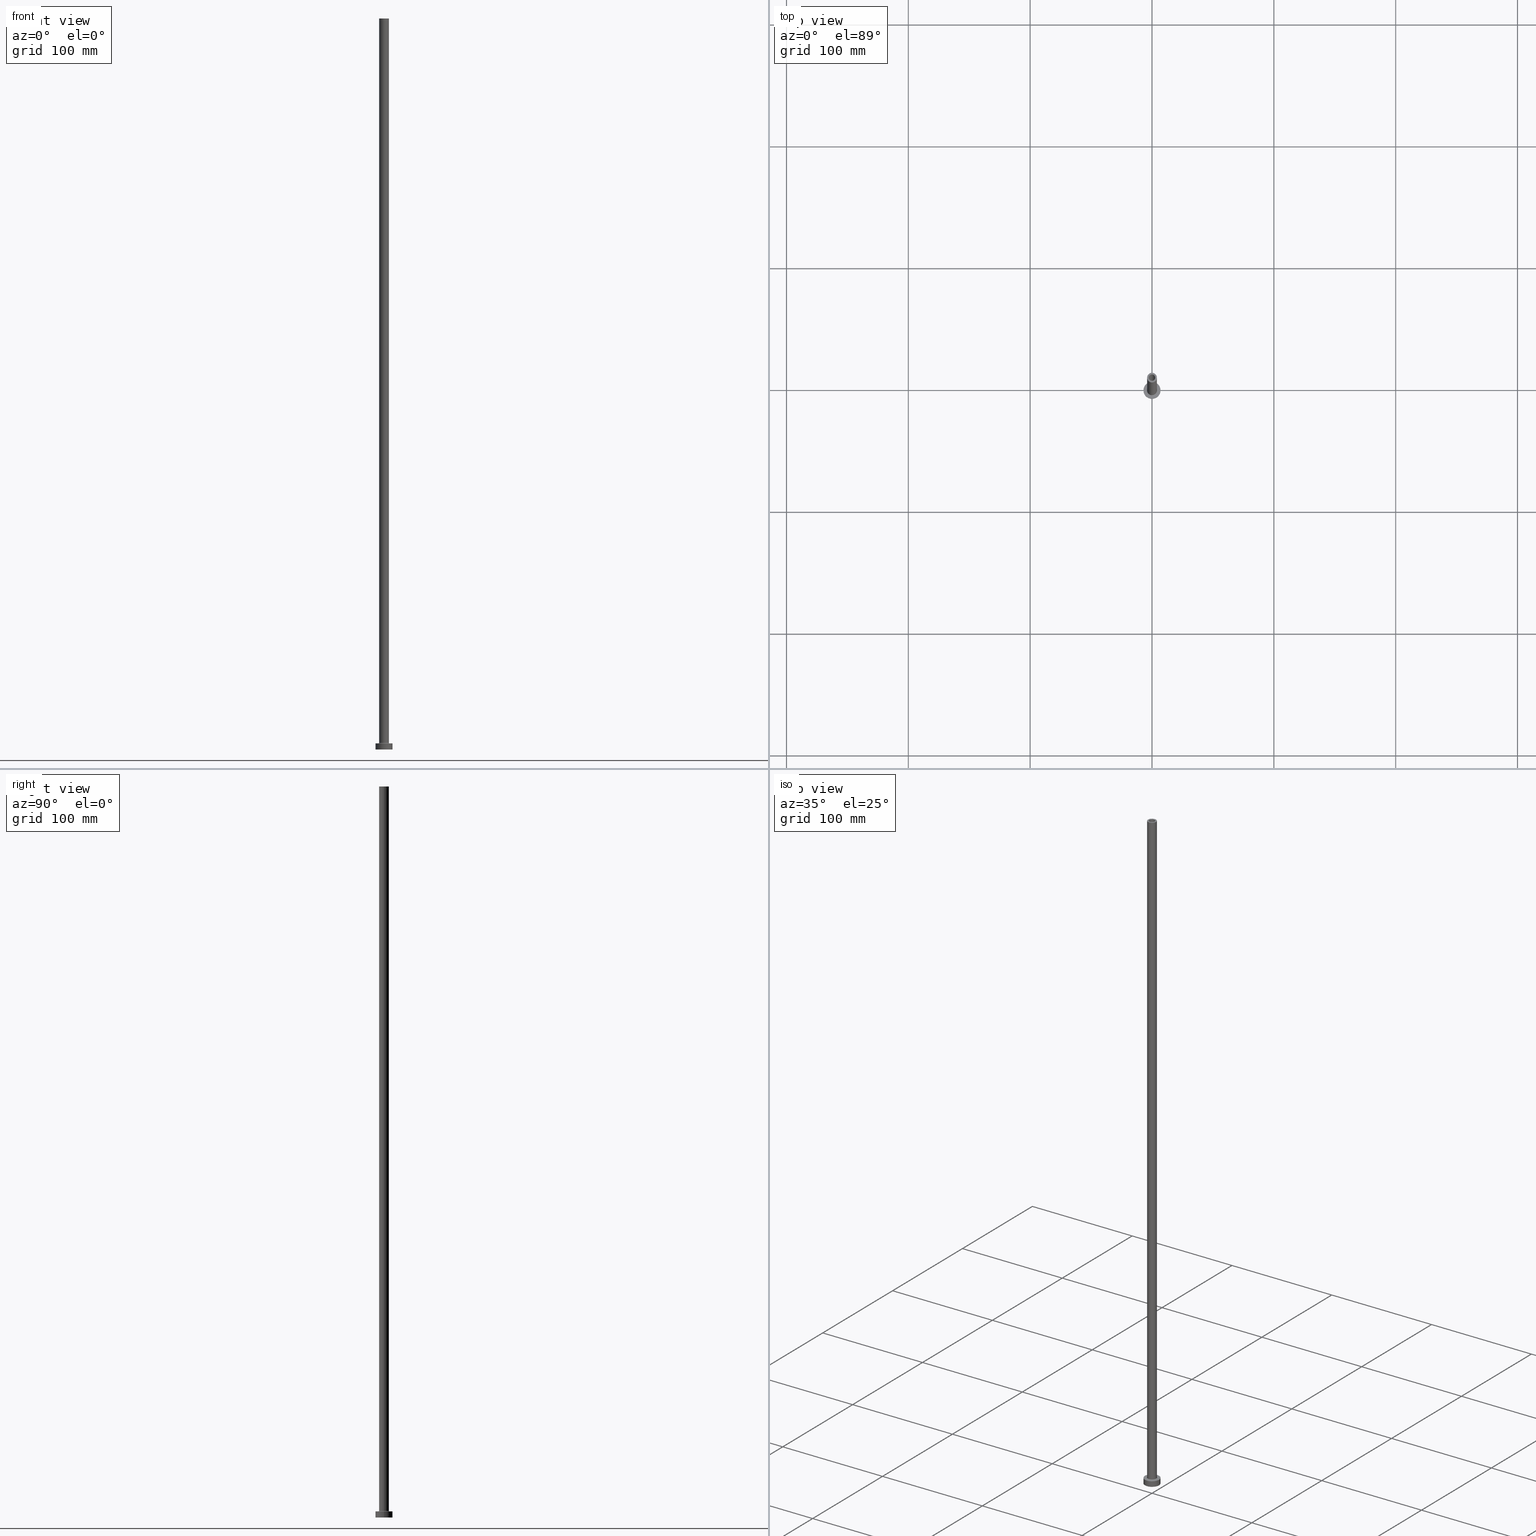
[diagram: canonical four-view strip — front | top / right | iso, engineering-drawing reading convention]
A machine part, canonical four-view strip (front | top / right | iso — engineering-drawing reading convention). The complete STEP part file that produces these views, byte-faithful:
ISO-10303-21;
HEADER;
FILE_DESCRIPTION (( 'STEP AP203' ),
    '1' );
FILE_NAME ('ce07.STEP',
    '2023-02-13T16:28:11',
    ( '' ),
    ( '' ),
    'SwSTEP 2.0',
    'SolidWorks 2019',
    '' );
FILE_SCHEMA (( 'CONFIG_CONTROL_DESIGN' ));
ENDSEC;

DATA;
#1 = DIRECTION ( 'NONE',  ( 0.000000000000000000, 0.000000000000000000, 1.000000000000000000 ) ) ;
#2 = DATE_TIME_ROLE ( 'classification_date' ) ;
#3 = CARTESIAN_POINT ( 'NONE',  ( 0.000000000000000000, 0.000000000000000000, 5.000000000000000000 ) ) ;
#4 = DIRECTION ( 'NONE',  ( 1.000000000000000000, 0.000000000000000000, -0.000000000000000000 ) ) ;
#5 = SECURITY_CLASSIFICATION_LEVEL ( 'unclassified' ) ;
#6 = AXIS2_PLACEMENT_3D ( 'NONE', #308, #345, #282 ) ;
#7 = CIRCLE ( 'NONE', #29, 7.000000000000000000 ) ;
#8 = CARTESIAN_POINT ( 'NONE',  ( -2.750000000000000000, 0.000000000000000000, 0.000000000000000000 ) ) ;
#9 = DIRECTION ( 'NONE',  ( -0.000000000000000000, -0.000000000000000000, -1.000000000000000000 ) ) ;
#10 = FACE_OUTER_BOUND ( 'NONE', #52, .T. ) ;
#11 = ADVANCED_FACE ( 'NONE', ( #39 ), #151, .T. ) ;
#12 = CARTESIAN_POINT ( 'NONE',  ( 2.600000000000000089, 3.184081677783118191E-16, 554.9999999999998863 ) ) ;
#13 = ORIENTED_EDGE ( 'NONE', *, *, #356, .F. ) ;
#14 = ORIENTED_EDGE ( 'NONE', *, *, #73, .F. ) ;
#15 = ORIENTED_EDGE ( 'NONE', *, *, #270, .T. ) ;
#16 = EDGE_CURVE ( 'NONE', #360, #285, #201, .T. ) ;
#17 = AXIS2_PLACEMENT_3D ( 'NONE', #286, #24, #249 ) ;
#18 = DIRECTION ( 'NONE',  ( 0.000000000000000000, 0.000000000000000000, -1.000000000000000000 ) ) ;
#19 = ORIENTED_EDGE ( 'NONE', *, *, #412, .T. ) ;
#20 = VERTEX_POINT ( 'NONE', #28 ) ;
#21 = ADVANCED_FACE ( 'NONE', ( #145 ), #214, .T. ) ;
#22 = AXIS2_PLACEMENT_3D ( 'NONE', #377, #407, #34 ) ;
#23 =( LENGTH_UNIT ( ) NAMED_UNIT ( * ) SI_UNIT ( .MILLI., .METRE. ) );
#24 = DIRECTION ( 'NONE',  ( 0.000000000000000000, 0.000000000000000000, 1.000000000000000000 ) ) ;
#25 = CARTESIAN_POINT ( 'NONE',  ( 2.600000000000000089, 3.184081677783118191E-16, 600.0000000000000000 ) ) ;
#26 = CARTESIAN_POINT ( 'NONE',  ( 4.000000000000000000, 4.898587196589412829E-16, 5.499999999999949374 ) ) ;
#27 = EDGE_CURVE ( 'NONE', #334, #276, #378, .T. ) ;
#28 = CARTESIAN_POINT ( 'NONE',  ( -4.500000000000000888, 5.510910596163088569E-16, 4.999999999999975131 ) ) ;
#29 = AXIS2_PLACEMENT_3D ( 'NONE', #46, #287, #414 ) ;
#30 = PLANE ( 'NONE',  #51 ) ;
#31 = EDGE_LOOP ( 'NONE', ( #418, #338 ) ) ;
#32 = FACE_OUTER_BOUND ( 'NONE', #269, .T. ) ;
#33 = APPROVAL_STATUS ( 'not_yet_approved' ) ;
#34 = DIRECTION ( 'NONE',  ( 1.000000000000000000, 0.000000000000000000, 0.000000000000000000 ) ) ;
#35 = ORIENTED_EDGE ( 'NONE', *, *, #246, .F. ) ;
#36 = DIRECTION ( 'NONE',  ( -0.000000000000000000, -0.000000000000000000, -1.000000000000000000 ) ) ;
#37 = DIRECTION ( 'NONE',  ( 0.000000000000000000, 0.000000000000000000, 1.000000000000000000 ) ) ;
#38 = DIRECTION ( 'NONE',  ( -1.000000000000000000, 0.000000000000000000, 0.000000000000000000 ) ) ;
#39 = FACE_OUTER_BOUND ( 'NONE', #198, .T. ) ;
#40 = PERSON_AND_ORGANIZATION_ROLE ( 'design_supplier' ) ;
#41 = EDGE_CURVE ( 'NONE', #360, #411, #69, .T. ) ;
#42 = CARTESIAN_POINT ( 'NONE',  ( 0.000000000000000000, 0.000000000000000000, 5.000000000000000000 ) ) ;
#43 = CARTESIAN_POINT ( 'NONE',  ( 0.000000000000000000, 0.000000000000000000, 5.499999999999949374 ) ) ;
#44 = CARTESIAN_POINT ( 'NONE',  ( 0.000000000000000000, 0.000000000000000000, 5.000000000000000000 ) ) ;
#45 = ADVANCED_FACE ( 'NONE', ( #409, #10 ), #79, .T. ) ;
#46 = CARTESIAN_POINT ( 'NONE',  ( 0.000000000000000000, 0.000000000000000000, 0.000000000000000000 ) ) ;
#47 = LINE ( 'NONE', #185, #325 ) ;
#48 = APPLICATION_CONTEXT ( 'configuration controlled 3d designs of mechanical parts and assemblies' ) ;
#49 = FACE_OUTER_BOUND ( 'NONE', #225, .T. ) ;
#50 = CIRCLE ( 'NONE', #259, 2.600000000000000089 ) ;
#51 = AXIS2_PLACEMENT_3D ( 'NONE', #374, #67, #408 ) ;
#52 = EDGE_LOOP ( 'NONE', ( #322, #398 ) ) ;
#53 = CC_DESIGN_APPROVAL ( #383, ( #87 ) ) ;
#54 = ORIENTED_EDGE ( 'NONE', *, *, #16, .T. ) ;
#55 = PRODUCT_RELATED_PRODUCT_CATEGORY ( 'detail', '', ( #274 ) ) ;
#56 = EDGE_LOOP ( 'NONE', ( #303, #250, #200, #14 ) ) ;
#57 = CIRCLE ( 'NONE', #424, 2.750000000000000000 ) ;
#58 = CIRCLE ( 'NONE', #220, 7.000000000000000000 ) ;
#59 = CARTESIAN_POINT ( 'NONE',  ( -2.750000000000000000, 0.000000000000000000, 562.7781745930519719 ) ) ;
#60 = CARTESIAN_POINT ( 'NONE',  ( 0.000000000000000000, 0.000000000000000000, 600.0000000000000000 ) ) ;
#61 = EDGE_CURVE ( 'NONE', #448, #20, #400, .T. ) ;
#62 = DIRECTION ( 'NONE',  ( 0.000000000000000000, 0.000000000000000000, 1.000000000000000000 ) ) ;
#63 = DIRECTION ( 'NONE',  ( 0.000000000000000000, -1.000000000000000000, 0.000000000000000000 ) ) ;
#64 = DIRECTION ( 'NONE',  ( 1.000000000000000000, 0.000000000000000000, 0.000000000000000000 ) ) ;
#65 = ORIENTED_EDGE ( 'NONE', *, *, #306, .T. ) ;
#66 = AXIS2_PLACEMENT_3D ( 'NONE', #233, #388, #300 ) ;
#67 = DIRECTION ( 'NONE',  ( 0.000000000000000000, 0.000000000000000000, 1.000000000000000000 ) ) ;
#68 = DIRECTION ( 'NONE',  ( 1.000000000000000000, 0.000000000000000000, 0.000000000000000000 ) ) ;
#69 = LINE ( 'NONE', #344, #268 ) ;
#70 = DIRECTION ( 'NONE',  ( 0.000000000000000000, 0.000000000000000000, 1.000000000000000000 ) ) ;
#71 = DATE_AND_TIME ( #429, #197 ) ;
#72 = DATE_AND_TIME ( #140, #189 ) ;
#73 = EDGE_CURVE ( 'NONE', #167, #85, #434, .T. ) ;
#74 = CARTESIAN_POINT ( 'NONE',  ( 0.000000000000000000, 0.000000000000000000, 0.000000000000000000 ) ) ;
#75 = ORIENTED_EDGE ( 'NONE', *, *, #96, .T. ) ;
#76 = DIRECTION ( 'NONE',  ( 0.000000000000000000, 0.000000000000000000, 1.000000000000000000 ) ) ;
#77 = TOROIDAL_SURFACE ( 'NONE', #22, 4.500000000000000888, 0.5000000000000000000 ) ;
#78 = ORIENTED_EDGE ( 'NONE', *, *, #365, .F. ) ;
#79 = PLANE ( 'NONE',  #415 ) ;
#80 = ADVANCED_FACE ( 'NONE', ( #32 ), #101, .F. ) ;
#81 = APPROVAL_PERSON_ORGANIZATION ( #217, #180, #392 ) ;
#82 = CARTESIAN_POINT ( 'NONE',  ( 0.000000000000000000, 0.000000000000000000, 600.0000000000000000 ) ) ;
#83 = ORIENTED_EDGE ( 'NONE', *, *, #228, .F. ) ;
#84 = DIRECTION ( 'NONE',  ( 1.000000000000000000, 0.000000000000000000, 0.000000000000000000 ) ) ;
#85 = VERTEX_POINT ( 'NONE', #380 ) ;
#86 = CARTESIAN_POINT ( 'NONE',  ( -7.000000000000000000, 0.000000000000000000, 0.000000000000000000 ) ) ;
#87 = PRODUCT_DEFINITION ( 'NEZN�M�', '', #196, #261 ) ;
#88 = ORIENTED_EDGE ( 'NONE', *, *, #253, .T. ) ;
#89 = MANIFOLD_SOLID_BREP ( 'Odebrat vysunut�m4', #142 ) ;
#90 = DIRECTION ( 'NONE',  ( -1.000000000000000000, 0.000000000000000000, 0.000000000000000000 ) ) ;
#91 = EDGE_LOOP ( 'NONE', ( #331, #382, #127, #195 ) ) ;
#92 =( NAMED_UNIT ( * ) SI_UNIT ( $, .STERADIAN. ) SOLID_ANGLE_UNIT ( ) );
#93 = VECTOR ( 'NONE', #191, 1000.000000000000000 ) ;
#94 = AXIS2_PLACEMENT_3D ( 'NONE', #60, #206, #252 ) ;
#95 = CIRCLE ( 'NONE', #132, 2.600000000000000089 ) ;
#96 = EDGE_CURVE ( 'NONE', #298, #327, #57, .T. ) ;
#97 = LINE ( 'NONE', #163, #111 ) ;
#98 = DIRECTION ( 'NONE',  ( 0.000000000000000000, 0.000000000000000000, -1.000000000000000000 ) ) ;
#99 = FACE_BOUND ( 'NONE', #342, .T. ) ;
#100 = CARTESIAN_POINT ( 'NONE',  ( 0.000000000000000000, 0.000000000000000000, 600.0000000000000000 ) ) ;
#101 = CYLINDRICAL_SURFACE ( 'NONE', #438, 2.750000000000000000 ) ;
#102 = EDGE_LOOP ( 'NONE', ( #309, #65, #341, #173 ) ) ;
#103 = DIRECTION ( 'NONE',  ( 0.000000000000000000, 0.000000000000000000, 1.000000000000000000 ) ) ;
#104 = CALENDAR_DATE ( 2023, 13, 2 ) ;
#105 = PERSON_AND_ORGANIZATION ( #427, #445 ) ;
#106 = VERTEX_POINT ( 'NONE', #86 ) ;
#107 = CARTESIAN_POINT ( 'NONE',  ( 0.000000000000000000, 0.000000000000000000, 5.499999999999949374 ) ) ;
#108 = VECTOR ( 'NONE', #289, 1000.000000000000000 ) ;
#109 = EDGE_CURVE ( 'NONE', #411, #156, #209, .T. ) ;
#110 = AXIS2_PLACEMENT_3D ( 'NONE', #318, #1, #137 ) ;
#111 = VECTOR ( 'NONE', #333, 1000.000000000000000 ) ;
#112 = SHAPE_DEFINITION_REPRESENTATION ( #316, #336 ) ;
#113 = VERTEX_POINT ( 'NONE', #139 ) ;
#114 = DIRECTION ( 'NONE',  ( -0.000000000000000000, -0.000000000000000000, -1.000000000000000000 ) ) ;
#115 = CYLINDRICAL_SURFACE ( 'NONE', #272, 7.000000000000000000 ) ;
#116 = APPROVAL_ROLE ( '' ) ;
#117 = CC_DESIGN_SECURITY_CLASSIFICATION ( #391, ( #196 ) ) ;
#118 = EDGE_CURVE ( 'NONE', #236, #361, #239, .T. ) ;
#119 = UNCERTAINTY_MEASURE_WITH_UNIT (LENGTH_MEASURE( 1.000000000000000082E-05 ), #23, 'distance_accuracy_value', 'NONE');
#120 = DIRECTION ( 'NONE',  ( 0.000000000000000000, 0.000000000000000000, 1.000000000000000000 ) ) ;
#121 = CARTESIAN_POINT ( 'NONE',  ( 0.000000000000000000, 0.000000000000000000, 554.9999999999998863 ) ) ;
#122 = EDGE_LOOP ( 'NONE', ( #83, #13 ) ) ;
#123 = EDGE_CURVE ( 'NONE', #327, #298, #444, .T. ) ;
#124 = ORIENTED_EDGE ( 'NONE', *, *, #337, .F. ) ;
#125 = AXIS2_PLACEMENT_3D ( 'NONE', #227, #328, #159 ) ;
#126 = EDGE_LOOP ( 'NONE', ( #278, #15 ) ) ;
#127 = ORIENTED_EDGE ( 'NONE', *, *, #350, .T. ) ;
#128 = APPROVAL_PERSON_ORGANIZATION ( #149, #420, #116 ) ;
#129 = EDGE_CURVE ( 'NONE', #285, #448, #47, .T. ) ;
#130 = CARTESIAN_POINT ( 'NONE',  ( 0.000000000000000000, 0.000000000000000000, 562.7781745930519719 ) ) ;
#131 = VECTOR ( 'NONE', #313, 1000.000000000000000 ) ;
#132 = AXIS2_PLACEMENT_3D ( 'NONE', #121, #237, #363 ) ;
#133 = CARTESIAN_POINT ( 'NONE',  ( 0.000000000000000000, 0.000000000000000000, 600.0000000000000000 ) ) ;
#134 = CARTESIAN_POINT ( 'NONE',  ( 4.500000000000000888, 0.000000000000000000, 5.499999999999949374 ) ) ;
#135 = FACE_OUTER_BOUND ( 'NONE', #91, .T. ) ;
#136 = DIRECTION ( 'NONE',  ( -0.000000000000000000, -0.000000000000000000, -1.000000000000000000 ) ) ;
#137 = DIRECTION ( 'NONE',  ( 1.000000000000000000, 0.000000000000000000, 0.000000000000000000 ) ) ;
#138 = LOCAL_TIME ( 17, 28, 11.00000000000000000, #296 ) ;
#139 = CARTESIAN_POINT ( 'NONE',  ( 2.750000000000000000, 3.367778697655221012E-16, 554.9999999999998863 ) ) ;
#140 = CALENDAR_DATE ( 2023, 13, 2 ) ;
#141 = ORIENTED_EDGE ( 'NONE', *, *, #228, .T. ) ;
#142 = CLOSED_SHELL ( 'NONE', ( #441, #80, #216, #21, #283, #11, #45, #436, #148, #323, #329, #370, #404, #301 ) ) ;
#143 = CARTESIAN_POINT ( 'NONE',  ( 0.000000000000000000, 0.000000000000000000, 0.000000000000000000 ) ) ;
#144 = DIRECTION ( 'NONE',  ( -1.000000000000000000, 0.000000000000000000, 0.000000000000000000 ) ) ;
#145 = FACE_OUTER_BOUND ( 'NONE', #422, .T. ) ;
#146 = MECHANICAL_CONTEXT ( 'NONE', #439, 'mechanical' ) ;
#147 = EDGE_LOOP ( 'NONE', ( #124, #443, #168, #265 ) ) ;
#148 = ADVANCED_FACE ( 'NONE', ( #157 ), #304, .T. ) ;
#149 = PERSON_AND_ORGANIZATION ( #427, #445 ) ;
#150 = ORIENTED_EDGE ( 'NONE', *, *, #292, .F. ) ;
#151 = CYLINDRICAL_SURFACE ( 'NONE', #152, 7.000000000000000000 ) ;
#152 = AXIS2_PLACEMENT_3D ( 'NONE', #433, #425, #144 ) ;
#153 = CIRCLE ( 'NONE', #162, 4.500000000000000888 ) ;
#154 = PERSON_AND_ORGANIZATION_ROLE ( 'classification_officer' ) ;
#155 = ORIENTED_EDGE ( 'NONE', *, *, #292, .T. ) ;
#156 = VERTEX_POINT ( 'NONE', #232 ) ;
#157 = FACE_OUTER_BOUND ( 'NONE', #222, .T. ) ;
#158 = LOCAL_TIME ( 17, 28, 11.00000000000000000, #320 ) ;
#159 = DIRECTION ( 'NONE',  ( -1.000000000000000000, 0.000000000000000000, 0.000000000000000000 ) ) ;
#160 = CARTESIAN_POINT ( 'NONE',  ( -2.600000000000000089, 0.000000000000000000, 600.0000000000000000 ) ) ;
#161 = CIRCLE ( 'NONE', #299, 4.000000000000000000 ) ;
#162 = AXIS2_PLACEMENT_3D ( 'NONE', #44, #335, #428 ) ;
#163 = CARTESIAN_POINT ( 'NONE',  ( 2.750000000000000000, 3.367778697655221012E-16, 562.7781745930519719 ) ) ;
#164 = CARTESIAN_POINT ( 'NONE',  ( 0.000000000000000000, 0.000000000000000000, 0.000000000000000000 ) ) ;
#165 = EDGE_CURVE ( 'NONE', #156, #20, #192, .T. ) ;
#166 = ORIENTED_EDGE ( 'NONE', *, *, #314, .T. ) ;
#167 = VERTEX_POINT ( 'NONE', #353 ) ;
#168 = ORIENTED_EDGE ( 'NONE', *, *, #165, .F. ) ;
#169 = DIRECTION ( 'NONE',  ( 0.000000000000000000, 0.000000000000000000, 1.000000000000000000 ) ) ;
#170 = CARTESIAN_POINT ( 'NONE',  ( 0.000000000000000000, 0.000000000000000000, 554.9999999999998863 ) ) ;
#171 = AXIS2_PLACEMENT_3D ( 'NONE', #410, #120, #279 ) ;
#172 = CARTESIAN_POINT ( 'NONE',  ( -7.000000000000000000, 0.000000000000000000, 5.000000000000000000 ) ) ;
#173 = ORIENTED_EDGE ( 'NONE', *, *, #253, .F. ) ;
#174 = DIRECTION ( 'NONE',  ( -0.000000000000000000, -0.000000000000000000, -1.000000000000000000 ) ) ;
#175 = CC_DESIGN_PERSON_AND_ORGANIZATION_ASSIGNMENT ( #321, #40, ( #196 ) ) ;
#176 = COORDINATED_UNIVERSAL_TIME_OFFSET ( 1, 0, .AHEAD. ) ;
#177 = ORIENTED_EDGE ( 'NONE', *, *, #375, .T. ) ;
#178 = TOROIDAL_SURFACE ( 'NONE', #457, 4.500000000000000888, 0.5000000000000000000 ) ;
#179 = PERSON_AND_ORGANIZATION_ROLE ( 'design_owner' ) ;
#180 = APPROVAL ( #183, 'NEUR�EN�' ) ;
#181 = DIRECTION ( 'NONE',  ( 0.000000000000000000, 0.000000000000000000, 1.000000000000000000 ) ) ;
#182 = APPROVAL_ROLE ( '' ) ;
#183 = APPROVAL_STATUS ( 'not_yet_approved' ) ;
#184 = ORIENTED_EDGE ( 'NONE', *, *, #350, .F. ) ;
#185 = CARTESIAN_POINT ( 'NONE',  ( -4.000000000000000000, 0.000000000000000000, 600.0000000000000000 ) ) ;
#186 = AXIS2_PLACEMENT_3D ( 'NONE', #82, #277, #68 ) ;
#187 = CIRCLE ( 'NONE', #310, 2.600000000000000089 ) ;
#188 = ORIENTED_EDGE ( 'NONE', *, *, #118, .T. ) ;
#189 = LOCAL_TIME ( 17, 28, 11.00000000000000000, #251 ) ;
#190 = CARTESIAN_POINT ( 'NONE',  ( 7.000000000000000000, 8.572527594031473190E-16, 5.000000000000000000 ) ) ;
#191 = DIRECTION ( 'NONE',  ( -0.000000000000000000, -0.000000000000000000, -1.000000000000000000 ) ) ;
#192 = CIRCLE ( 'NONE', #451, 4.500000000000000888 ) ;
#193 = ORIENTED_EDGE ( 'NONE', *, *, #399, .F. ) ;
#194 = EDGE_CURVE ( 'NONE', #167, #334, #50, .T. ) ;
#195 = ORIENTED_EDGE ( 'NONE', *, *, #123, .T. ) ;
#196 = PRODUCT_DEFINITION_FORMATION_WITH_SPECIFIED_SOURCE ( 'LIBOVOLN�', '', #274, .NOT_KNOWN. ) ;
#197 = LOCAL_TIME ( 17, 28, 11.00000000000000000, #302 ) ;
#198 = EDGE_LOOP ( 'NONE', ( #273, #78, #177, #461 ) ) ;
#199 = CC_DESIGN_PERSON_AND_ORGANIZATION_ASSIGNMENT ( #421, #154, ( #391 ) ) ;
#200 = ORIENTED_EDGE ( 'NONE', *, *, #358, .F. ) ;
#201 = CIRCLE ( 'NONE', #186, 4.000000000000000000 ) ;
#202 = CIRCLE ( 'NONE', #456, 2.600000000000000089 ) ;
#203 = DIRECTION ( 'NONE',  ( 1.000000000000000000, 0.000000000000000000, 0.000000000000000000 ) ) ;
#204 = ORIENTED_EDGE ( 'NONE', *, *, #61, .F. ) ;
#205 = CYLINDRICAL_SURFACE ( 'NONE', #238, 2.600000000000000089 ) ;
#206 = DIRECTION ( 'NONE',  ( 0.000000000000000000, 0.000000000000000000, -1.000000000000000000 ) ) ;
#207 = CARTESIAN_POINT ( 'NONE',  ( -2.750000000000000000, 0.000000000000000000, 554.9999999999998863 ) ) ;
#208 = DIRECTION ( 'NONE',  ( 1.000000000000000000, 0.000000000000000000, 0.000000000000000000 ) ) ;
#209 = CIRCLE ( 'NONE', #244, 0.5000000000000004441 ) ;
#210 = CC_DESIGN_PERSON_AND_ORGANIZATION_ASSIGNMENT ( #256, #179, ( #274 ) ) ;
#211 = VECTOR ( 'NONE', #136, 1000.000000000000000 ) ;
#212 = DIRECTION ( 'NONE',  ( 1.000000000000000000, 0.000000000000000000, -0.000000000000000000 ) ) ;
#213 = APPROVAL_DATE_TIME ( #417, #180 ) ;
#214 = CYLINDRICAL_SURFACE ( 'NONE', #455, 4.000000000000000000 ) ;
#215 = DATE_AND_TIME ( #389, #158 ) ;
#216 = ADVANCED_FACE ( 'NONE', ( #349 ), #178, .F. ) ;
#217 = PERSON_AND_ORGANIZATION ( #427, #445 ) ;
#218 = DIRECTION ( 'NONE',  ( 0.000000000000000000, 0.000000000000000000, 1.000000000000000000 ) ) ;
#219 = VECTOR ( 'NONE', #319, 1000.000000000000000 ) ;
#220 = AXIS2_PLACEMENT_3D ( 'NONE', #315, #450, #208 ) ;
#221 = DIRECTION ( 'NONE',  ( 1.000000000000000000, 0.000000000000000000, 0.000000000000000000 ) ) ;
#222 = EDGE_LOOP ( 'NONE', ( #224, #193, #255, #295 ) ) ;
#223 = DIRECTION ( 'NONE',  ( 1.000000000000000000, 0.000000000000000000, 0.000000000000000000 ) ) ;
#224 = ORIENTED_EDGE ( 'NONE', *, *, #41, .F. ) ;
#225 = EDGE_LOOP ( 'NONE', ( #426, #54 ) ) ;
#226 = EDGE_LOOP ( 'NONE', ( #437, #188, #155, #402 ) ) ;
#227 = CARTESIAN_POINT ( 'NONE',  ( 0.000000000000000000, 0.000000000000000000, 600.0000000000000000 ) ) ;
#228 = EDGE_CURVE ( 'NONE', #364, #113, #362, .T. ) ;
#229 = AXIS2_PLACEMENT_3D ( 'NONE', #288, #103, #212 ) ;
#230 = AXIS2_PLACEMENT_3D ( 'NONE', #74, #397, #84 ) ;
#231 =( GEOMETRIC_REPRESENTATION_CONTEXT ( 3 ) GLOBAL_UNCERTAINTY_ASSIGNED_CONTEXT ( ( #119 ) ) GLOBAL_UNIT_ASSIGNED_CONTEXT ( ( #23, #280, #92 ) ) REPRESENTATION_CONTEXT ( 'NONE', 'WORKASPACE' ) );
#232 = CARTESIAN_POINT ( 'NONE',  ( 4.500000000000000888, 0.000000000000000000, 4.999999999999975131 ) ) ;
#233 = CARTESIAN_POINT ( 'NONE',  ( -4.500000000000000888, 5.510910596163089556E-16, 5.499999999999949374 ) ) ;
#234 = CARTESIAN_POINT ( 'NONE',  ( -4.000000000000000000, 0.000000000000000000, 600.0000000000000000 ) ) ;
#235 = CC_DESIGN_APPROVAL ( #180, ( #196 ) ) ;
#236 = VERTEX_POINT ( 'NONE', #190 ) ;
#237 = DIRECTION ( 'NONE',  ( 0.000000000000000000, 0.000000000000000000, 1.000000000000000000 ) ) ;
#238 = AXIS2_PLACEMENT_3D ( 'NONE', #247, #98, #90 ) ;
#239 = LINE ( 'NONE', #359, #93 ) ;
#240 = EDGE_LOOP ( 'NONE', ( #35, #150 ) ) ;
#241 = CC_DESIGN_PERSON_AND_ORGANIZATION_ASSIGNMENT ( #324, #354, ( #87 ) ) ;
#242 = CARTESIAN_POINT ( 'NONE',  ( -4.000000000000000000, 0.000000000000000000, 5.499999999999949374 ) ) ;
#243 = ORIENTED_EDGE ( 'NONE', *, *, #16, .F. ) ;
#244 = AXIS2_PLACEMENT_3D ( 'NONE', #134, #63, #373 ) ;
#245 = CYLINDRICAL_SURFACE ( 'NONE', #94, 2.600000000000000089 ) ;
#246 = EDGE_CURVE ( 'NONE', #106, #361, #307, .T. ) ;
#247 = CARTESIAN_POINT ( 'NONE',  ( 0.000000000000000000, 0.000000000000000000, 600.0000000000000000 ) ) ;
#248 = CARTESIAN_POINT ( 'NONE',  ( 2.600000000000000089, 3.184081677783118191E-16, 600.0000000000000000 ) ) ;
#249 = DIRECTION ( 'NONE',  ( 1.000000000000000000, 0.000000000000000000, 0.000000000000000000 ) ) ;
#250 = ORIENTED_EDGE ( 'NONE', *, *, #27, .T. ) ;
#251 = COORDINATED_UNIVERSAL_TIME_OFFSET ( 1, 0, .AHEAD. ) ;
#252 = DIRECTION ( 'NONE',  ( -1.000000000000000000, 0.000000000000000000, 0.000000000000000000 ) ) ;
#253 = EDGE_CURVE ( 'NONE', #276, #85, #95, .T. ) ;
#254 = CALENDAR_DATE ( 2023, 13, 2 ) ;
#255 = ORIENTED_EDGE ( 'NONE', *, *, #129, .T. ) ;
#256 = PERSON_AND_ORGANIZATION ( #427, #445 ) ;
#257 = DIRECTION ( 'NONE',  ( 0.000000000000000000, 0.000000000000000000, 1.000000000000000000 ) ) ;
#258 = CARTESIAN_POINT ( 'NONE',  ( 0.000000000000000000, 0.000000000000000000, 5.499999999999949374 ) ) ;
#259 = AXIS2_PLACEMENT_3D ( 'NONE', #100, #37, #459 ) ;
#260 = CIRCLE ( 'NONE', #394, 2.750000000000000000 ) ;
#261 = DESIGN_CONTEXT ( 'detailed design', #48, 'design' ) ;
#262 = DIRECTION ( 'NONE',  ( 0.000000000000000000, 0.000000000000000000, -1.000000000000000000 ) ) ;
#263 = CC_DESIGN_DATE_AND_TIME_ASSIGNMENT ( #215, #291, ( #87 ) ) ;
#264 = CC_DESIGN_APPROVAL ( #420, ( #391 ) ) ;
#265 = ORIENTED_EDGE ( 'NONE', *, *, #109, .F. ) ;
#266 = CARTESIAN_POINT ( 'NONE',  ( 0.000000000000000000, 0.000000000000000000, 5.000000000000000000 ) ) ;
#267 = EDGE_LOOP ( 'NONE', ( #204, #305, #355, #347 ) ) ;
#268 = VECTOR ( 'NONE', #36, 1000.000000000000000 ) ;
#269 = EDGE_LOOP ( 'NONE', ( #141, #19, #75, #184 ) ) ;
#270 = EDGE_CURVE ( 'NONE', #20, #156, #153, .T. ) ;
#271 = ORIENTED_EDGE ( 'NONE', *, *, #41, .T. ) ;
#272 = AXIS2_PLACEMENT_3D ( 'NONE', #266, #367, #405 ) ;
#273 = ORIENTED_EDGE ( 'NONE', *, *, #118, .F. ) ;
#274 = PRODUCT ( 'ce07', 'ce07', '', ( #146 ) ) ;
#275 = DIRECTION ( 'NONE',  ( -0.000000000000000000, -0.000000000000000000, -1.000000000000000000 ) ) ;
#276 = VERTEX_POINT ( 'NONE', #12 ) ;
#277 = DIRECTION ( 'NONE',  ( 0.000000000000000000, 0.000000000000000000, 1.000000000000000000 ) ) ;
#278 = ORIENTED_EDGE ( 'NONE', *, *, #165, .T. ) ;
#279 = DIRECTION ( 'NONE',  ( 1.000000000000000000, 0.000000000000000000, -0.000000000000000000 ) ) ;
#280 =( NAMED_UNIT ( * ) PLANE_ANGLE_UNIT ( ) SI_UNIT ( $, .RADIAN. ) );
#281 = CARTESIAN_POINT ( 'NONE',  ( 2.750000000000000000, 3.367778697655221012E-16, 0.000000000000000000 ) ) ;
#282 = DIRECTION ( 'NONE',  ( 1.000000000000000000, 0.000000000000000000, 0.000000000000000000 ) ) ;
#283 = ADVANCED_FACE ( 'NONE', ( #435 ), #115, .T. ) ;
#284 = PLANE ( 'NONE',  #171 ) ;
#285 = VERTEX_POINT ( 'NONE', #234 ) ;
#286 = CARTESIAN_POINT ( 'NONE',  ( 0.000000000000000000, 0.000000000000000000, 5.000000000000000000 ) ) ;
#287 = DIRECTION ( 'NONE',  ( 0.000000000000000000, 0.000000000000000000, 1.000000000000000000 ) ) ;
#288 = CARTESIAN_POINT ( 'NONE',  ( 0.000000000000000000, 0.000000000000000000, 600.0000000000000000 ) ) ;
#289 = DIRECTION ( 'NONE',  ( 0.000000000000000000, 0.000000000000000000, -1.000000000000000000 ) ) ;
#290 = DIRECTION ( 'NONE',  ( -1.000000000000000000, 0.000000000000000000, 0.000000000000000000 ) ) ;
#291 = DATE_TIME_ROLE ( 'creation_date' ) ;
#292 = EDGE_CURVE ( 'NONE', #361, #106, #7, .T. ) ;
#293 = CIRCLE ( 'NONE', #406, 4.000000000000000000 ) ;
#294 = DIRECTION ( 'NONE',  ( 0.000000000000000000, 0.000000000000000000, 1.000000000000000000 ) ) ;
#295 = ORIENTED_EDGE ( 'NONE', *, *, #337, .T. ) ;
#296 = COORDINATED_UNIVERSAL_TIME_OFFSET ( 1, 0, .AHEAD. ) ;
#297 = DATE_AND_TIME ( #254, #454 ) ;
#298 = VERTEX_POINT ( 'NONE', #281 ) ;
#299 = AXIS2_PLACEMENT_3D ( 'NONE', #258, #218, #223 ) ;
#300 = DIRECTION ( 'NONE',  ( -1.000000000000000000, 1.224646799147351482E-16, 0.000000000000000000 ) ) ;
#301 = ADVANCED_FACE ( 'NONE', ( #340 ), #245, .F. ) ;
#302 = COORDINATED_UNIVERSAL_TIME_OFFSET ( 1, 0, .AHEAD. ) ;
#303 = ORIENTED_EDGE ( 'NONE', *, *, #194, .T. ) ;
#304 = CYLINDRICAL_SURFACE ( 'NONE', #125, 4.000000000000000000 ) ;
#305 = ORIENTED_EDGE ( 'NONE', *, *, #314, .F. ) ;
#306 = EDGE_CURVE ( 'NONE', #334, #167, #187, .T. ) ;
#307 = CIRCLE ( 'NONE', #230, 7.000000000000000000 ) ;
#308 = CARTESIAN_POINT ( 'NONE',  ( 0.000000000000000000, 0.000000000000000000, 600.0000000000000000 ) ) ;
#309 = ORIENTED_EDGE ( 'NONE', *, *, #27, .F. ) ;
#310 = AXIS2_PLACEMENT_3D ( 'NONE', #430, #76, #381 ) ;
#311 = CC_DESIGN_DATE_AND_TIME_ASSIGNMENT ( #71, #2, ( #391 ) ) ;
#312 = DIRECTION ( 'NONE',  ( 1.000000000000000000, 0.000000000000000000, 0.000000000000000000 ) ) ;
#313 = DIRECTION ( 'NONE',  ( 0.000000000000000000, 0.000000000000000000, -1.000000000000000000 ) ) ;
#314 = EDGE_CURVE ( 'NONE', #411, #448, #161, .T. ) ;
#315 = CARTESIAN_POINT ( 'NONE',  ( 0.000000000000000000, 0.000000000000000000, 5.000000000000000000 ) ) ;
#316 = PRODUCT_DEFINITION_SHAPE ( 'NONE', 'NONE',  #87 ) ;
#317 = LINE ( 'NONE', #59, #131 ) ;
#318 = CARTESIAN_POINT ( 'NONE',  ( 0.000000000000000000, 0.000000000000000000, 554.9999999999998863 ) ) ;
#319 = DIRECTION ( 'NONE',  ( 0.000000000000000000, 0.000000000000000000, -1.000000000000000000 ) ) ;
#320 = COORDINATED_UNIVERSAL_TIME_OFFSET ( 1, 0, .AHEAD. ) ;
#321 = PERSON_AND_ORGANIZATION ( #427, #445 ) ;
#322 = ORIENTED_EDGE ( 'NONE', *, *, #365, .T. ) ;
#323 = ADVANCED_FACE ( 'NONE', ( #330, #49 ), #396, .T. ) ;
#324 = PERSON_AND_ORGANIZATION ( #427, #445 ) ;
#325 = VECTOR ( 'NONE', #9, 1000.000000000000000 ) ;
#326 = CIRCLE ( 'NONE', #17, 7.000000000000000000 ) ;
#327 = VERTEX_POINT ( 'NONE', #8 ) ;
#328 = DIRECTION ( 'NONE',  ( -0.000000000000000000, -0.000000000000000000, -1.000000000000000000 ) ) ;
#329 = ADVANCED_FACE ( 'NONE', ( #432 ), #77, .F. ) ;
#330 = FACE_BOUND ( 'NONE', #393, .T. ) ;
#331 = ORIENTED_EDGE ( 'NONE', *, *, #412, .F. ) ;
#332 = DIRECTION ( 'NONE',  ( -0.000000000000000000, -0.000000000000000000, -1.000000000000000000 ) ) ;
#333 = DIRECTION ( 'NONE',  ( 0.000000000000000000, 0.000000000000000000, -1.000000000000000000 ) ) ;
#334 = VERTEX_POINT ( 'NONE', #248 ) ;
#335 = DIRECTION ( 'NONE',  ( -0.000000000000000000, -0.000000000000000000, -1.000000000000000000 ) ) ;
#336 = ADVANCED_BREP_SHAPE_REPRESENTATION ( 'ce07', ( #89, #458 ), #231 ) ;
#337 = EDGE_CURVE ( 'NONE', #448, #411, #293, .T. ) ;
#338 = ORIENTED_EDGE ( 'NONE', *, *, #96, .F. ) ;
#339 = FACE_OUTER_BOUND ( 'NONE', #56, .T. ) ;
#340 = FACE_OUTER_BOUND ( 'NONE', #102, .T. ) ;
#341 = ORIENTED_EDGE ( 'NONE', *, *, #73, .T. ) ;
#342 = EDGE_LOOP ( 'NONE', ( #390, #88 ) ) ;
#343 = EDGE_CURVE ( 'NONE', #236, #416, #326, .T. ) ;
#344 = CARTESIAN_POINT ( 'NONE',  ( 4.000000000000000000, 4.898587196589412829E-16, 600.0000000000000000 ) ) ;
#345 = DIRECTION ( 'NONE',  ( 0.000000000000000000, 0.000000000000000000, 1.000000000000000000 ) ) ;
#346 = DIRECTION ( 'NONE',  ( -1.000000000000000000, 0.000000000000000000, 0.000000000000000000 ) ) ;
#347 = ORIENTED_EDGE ( 'NONE', *, *, #270, .F. ) ;
#348 = PERSON_AND_ORGANIZATION_ROLE ( 'creator' ) ;
#349 = FACE_OUTER_BOUND ( 'NONE', #147, .T. ) ;
#350 = EDGE_CURVE ( 'NONE', #364, #327, #317, .T. ) ;
#351 = APPROVAL_DATE_TIME ( #72, #383 ) ;
#352 = AXIS2_PLACEMENT_3D ( 'NONE', #395, #332, #366 ) ;
#353 = CARTESIAN_POINT ( 'NONE',  ( -2.600000000000000089, 0.000000000000000000, 600.0000000000000000 ) ) ;
#354 = PERSON_AND_ORGANIZATION_ROLE ( 'creator' ) ;
#355 = ORIENTED_EDGE ( 'NONE', *, *, #109, .T. ) ;
#356 = EDGE_CURVE ( 'NONE', #113, #364, #260, .T. ) ;
#357 = PERSON_AND_ORGANIZATION ( #427, #445 ) ;
#358 = EDGE_CURVE ( 'NONE', #85, #276, #202, .T. ) ;
#359 = CARTESIAN_POINT ( 'NONE',  ( 7.000000000000000000, 8.572527594031473190E-16, 5.000000000000000000 ) ) ;
#360 = VERTEX_POINT ( 'NONE', #403 ) ;
#361 = VERTEX_POINT ( 'NONE', #413 ) ;
#362 = CIRCLE ( 'NONE', #110, 2.750000000000000000 ) ;
#363 = DIRECTION ( 'NONE',  ( 1.000000000000000000, 0.000000000000000000, 0.000000000000000000 ) ) ;
#364 = VERTEX_POINT ( 'NONE', #207 ) ;
#365 = EDGE_CURVE ( 'NONE', #416, #236, #58, .T. ) ;
#366 = DIRECTION ( 'NONE',  ( 1.000000000000000000, 0.000000000000000000, 0.000000000000000000 ) ) ;
#367 = DIRECTION ( 'NONE',  ( -0.000000000000000000, -0.000000000000000000, -1.000000000000000000 ) ) ;
#368 = ORIENTED_EDGE ( 'NONE', *, *, #194, .F. ) ;
#369 = FACE_OUTER_BOUND ( 'NONE', #122, .T. ) ;
#370 = ADVANCED_FACE ( 'NONE', ( #135 ), #371, .F. ) ;
#371 = CYLINDRICAL_SURFACE ( 'NONE', #401, 2.750000000000000000 ) ;
#372 = LINE ( 'NONE', #453, #211 ) ;
#373 = DIRECTION ( 'NONE',  ( 0.000000000000000000, 0.000000000000000000, -1.000000000000000000 ) ) ;
#374 = CARTESIAN_POINT ( 'NONE',  ( 0.000000000000000000, 0.000000000000000000, 554.9999999999998863 ) ) ;
#375 = EDGE_CURVE ( 'NONE', #416, #106, #372, .T. ) ;
#376 = CARTESIAN_POINT ( 'NONE',  ( 0.000000000000000000, 0.000000000000000000, 562.7781745930519719 ) ) ;
#377 = CARTESIAN_POINT ( 'NONE',  ( 0.000000000000000000, 0.000000000000000000, 5.499999999999949374 ) ) ;
#378 = LINE ( 'NONE', #25, #219 ) ;
#379 = APPLICATION_PROTOCOL_DEFINITION ( 'international standard', 'config_control_design', 1994, #439 ) ;
#380 = CARTESIAN_POINT ( 'NONE',  ( -2.600000000000000089, 0.000000000000000000, 554.9999999999998863 ) ) ;
#381 = DIRECTION ( 'NONE',  ( 1.000000000000000000, 0.000000000000000000, 0.000000000000000000 ) ) ;
#382 = ORIENTED_EDGE ( 'NONE', *, *, #356, .T. ) ;
#383 = APPROVAL ( #384, 'NEUR�EN�' ) ;
#384 = APPROVAL_STATUS ( 'not_yet_approved' ) ;
#385 = CIRCLE ( 'NONE', #6, 4.000000000000000000 ) ;
#386 = DIRECTION ( 'NONE',  ( 1.000000000000000000, 0.000000000000000000, 0.000000000000000000 ) ) ;
#387 = APPROVAL_PERSON_ORGANIZATION ( #105, #383, #182 ) ;
#388 = DIRECTION ( 'NONE',  ( 1.224646799147353207E-16, 1.000000000000000000, -0.000000000000000000 ) ) ;
#389 = CALENDAR_DATE ( 2023, 13, 2 ) ;
#390 = ORIENTED_EDGE ( 'NONE', *, *, #358, .T. ) ;
#391 = SECURITY_CLASSIFICATION ( '', '', #5 ) ;
#392 = APPROVAL_ROLE ( '' ) ;
#393 = EDGE_LOOP ( 'NONE', ( #368, #431 ) ) ;
#394 = AXIS2_PLACEMENT_3D ( 'NONE', #452, #62, #312 ) ;
#395 = CARTESIAN_POINT ( 'NONE',  ( 0.000000000000000000, 0.000000000000000000, 0.000000000000000000 ) ) ;
#396 = PLANE ( 'NONE',  #229 ) ;
#397 = DIRECTION ( 'NONE',  ( 0.000000000000000000, 0.000000000000000000, 1.000000000000000000 ) ) ;
#398 = ORIENTED_EDGE ( 'NONE', *, *, #343, .T. ) ;
#399 = EDGE_CURVE ( 'NONE', #285, #360, #385, .T. ) ;
#400 = CIRCLE ( 'NONE', #66, 0.5000000000000004441 ) ;
#401 = AXIS2_PLACEMENT_3D ( 'NONE', #130, #18, #346 ) ;
#402 = ORIENTED_EDGE ( 'NONE', *, *, #375, .F. ) ;
#403 = CARTESIAN_POINT ( 'NONE',  ( 4.000000000000000000, 4.898587196589412829E-16, 600.0000000000000000 ) ) ;
#404 = ADVANCED_FACE ( 'NONE', ( #99, #369 ), #30, .F. ) ;
#405 = DIRECTION ( 'NONE',  ( -1.000000000000000000, 0.000000000000000000, 0.000000000000000000 ) ) ;
#406 = AXIS2_PLACEMENT_3D ( 'NONE', #43, #70, #203 ) ;
#407 = DIRECTION ( 'NONE',  ( 0.000000000000000000, 0.000000000000000000, 1.000000000000000000 ) ) ;
#408 = DIRECTION ( 'NONE',  ( 1.000000000000000000, 0.000000000000000000, -0.000000000000000000 ) ) ;
#409 = FACE_BOUND ( 'NONE', #126, .T. ) ;
#410 = CARTESIAN_POINT ( 'NONE',  ( 0.000000000000000000, 0.000000000000000000, 0.000000000000000000 ) ) ;
#411 = VERTEX_POINT ( 'NONE', #26 ) ;
#412 = EDGE_CURVE ( 'NONE', #113, #298, #97, .T. ) ;
#413 = CARTESIAN_POINT ( 'NONE',  ( 7.000000000000000000, 8.572527594031473190E-16, 0.000000000000000000 ) ) ;
#414 = DIRECTION ( 'NONE',  ( 1.000000000000000000, 0.000000000000000000, 0.000000000000000000 ) ) ;
#415 = AXIS2_PLACEMENT_3D ( 'NONE', #42, #181, #4 ) ;
#416 = VERTEX_POINT ( 'NONE', #172 ) ;
#417 = DATE_AND_TIME ( #104, #138 ) ;
#418 = ORIENTED_EDGE ( 'NONE', *, *, #123, .F. ) ;
#419 = DIRECTION ( 'NONE',  ( 1.000000000000000000, 0.000000000000000000, 0.000000000000000000 ) ) ;
#420 = APPROVAL ( #33, 'NEUR�EN�' ) ;
#421 = PERSON_AND_ORGANIZATION ( #427, #445 ) ;
#422 = EDGE_LOOP ( 'NONE', ( #243, #271, #166, #446 ) ) ;
#423 = APPROVAL_DATE_TIME ( #297, #420 ) ;
#424 = AXIS2_PLACEMENT_3D ( 'NONE', #164, #275, #442 ) ;
#425 = DIRECTION ( 'NONE',  ( -0.000000000000000000, -0.000000000000000000, -1.000000000000000000 ) ) ;
#426 = ORIENTED_EDGE ( 'NONE', *, *, #399, .T. ) ;
#427 = PERSON ( 'NEUR�EN�', 'NEUR�EN�', 'NEUR�EN�', ('NEUR�EN�'), ('NEUR�EN�'), ('NEUR�EN�') ) ;
#428 = DIRECTION ( 'NONE',  ( 1.000000000000000000, 0.000000000000000000, 0.000000000000000000 ) ) ;
#429 = CALENDAR_DATE ( 2023, 13, 2 ) ;
#430 = CARTESIAN_POINT ( 'NONE',  ( 0.000000000000000000, 0.000000000000000000, 600.0000000000000000 ) ) ;
#431 = ORIENTED_EDGE ( 'NONE', *, *, #306, .F. ) ;
#432 = FACE_OUTER_BOUND ( 'NONE', #267, .T. ) ;
#433 = CARTESIAN_POINT ( 'NONE',  ( 0.000000000000000000, 0.000000000000000000, 5.000000000000000000 ) ) ;
#434 = LINE ( 'NONE', #160, #108 ) ;
#435 = FACE_OUTER_BOUND ( 'NONE', #226, .T. ) ;
#436 = ADVANCED_FACE ( 'NONE', ( #440, #449 ), #284, .F. ) ;
#437 = ORIENTED_EDGE ( 'NONE', *, *, #343, .F. ) ;
#438 = AXIS2_PLACEMENT_3D ( 'NONE', #376, #262, #38 ) ;
#439 = APPLICATION_CONTEXT ( 'configuration controlled 3d designs of mechanical parts and assemblies' ) ;
#440 = FACE_BOUND ( 'NONE', #31, .T. ) ;
#441 = ADVANCED_FACE ( 'NONE', ( #339 ), #205, .F. ) ;
#442 = DIRECTION ( 'NONE',  ( 1.000000000000000000, 0.000000000000000000, 0.000000000000000000 ) ) ;
#443 = ORIENTED_EDGE ( 'NONE', *, *, #61, .T. ) ;
#444 = CIRCLE ( 'NONE', #352, 2.750000000000000000 ) ;
#445 = ORGANIZATION ( 'NEUR�EN�', 'NEUR�EN�', '' ) ;
#446 = ORIENTED_EDGE ( 'NONE', *, *, #129, .F. ) ;
#447 = CC_DESIGN_PERSON_AND_ORGANIZATION_ASSIGNMENT ( #357, #348, ( #196 ) ) ;
#448 = VERTEX_POINT ( 'NONE', #242 ) ;
#449 = FACE_OUTER_BOUND ( 'NONE', #240, .T. ) ;
#450 = DIRECTION ( 'NONE',  ( 0.000000000000000000, 0.000000000000000000, 1.000000000000000000 ) ) ;
#451 = AXIS2_PLACEMENT_3D ( 'NONE', #3, #114, #419 ) ;
#452 = CARTESIAN_POINT ( 'NONE',  ( 0.000000000000000000, 0.000000000000000000, 554.9999999999998863 ) ) ;
#453 = CARTESIAN_POINT ( 'NONE',  ( -7.000000000000000000, 0.000000000000000000, 5.000000000000000000 ) ) ;
#454 = LOCAL_TIME ( 17, 28, 11.00000000000000000, #176 ) ;
#455 = AXIS2_PLACEMENT_3D ( 'NONE', #133, #174, #290 ) ;
#456 = AXIS2_PLACEMENT_3D ( 'NONE', #170, #169, #64 ) ;
#457 = AXIS2_PLACEMENT_3D ( 'NONE', #107, #257, #386 ) ;
#458 = AXIS2_PLACEMENT_3D ( 'NONE', #143, #294, #221 ) ;
#459 = DIRECTION ( 'NONE',  ( 1.000000000000000000, 0.000000000000000000, 0.000000000000000000 ) ) ;
#460 = APPLICATION_PROTOCOL_DEFINITION ( 'international standard', 'config_control_design', 1994, #48 ) ;
#461 = ORIENTED_EDGE ( 'NONE', *, *, #246, .T. ) ;
ENDSEC;
END-ISO-10303-21;
